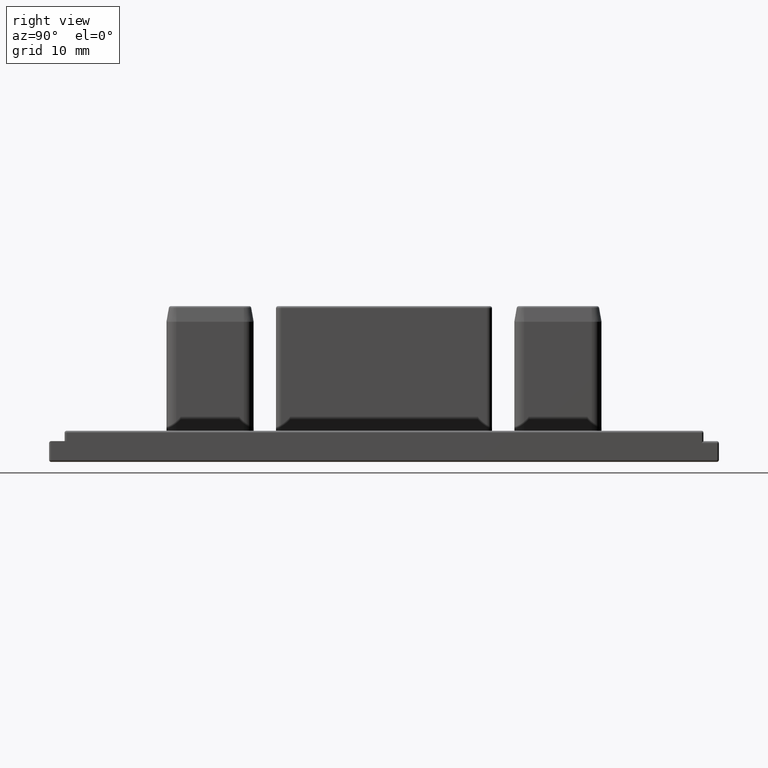
[diagram: clean part render]
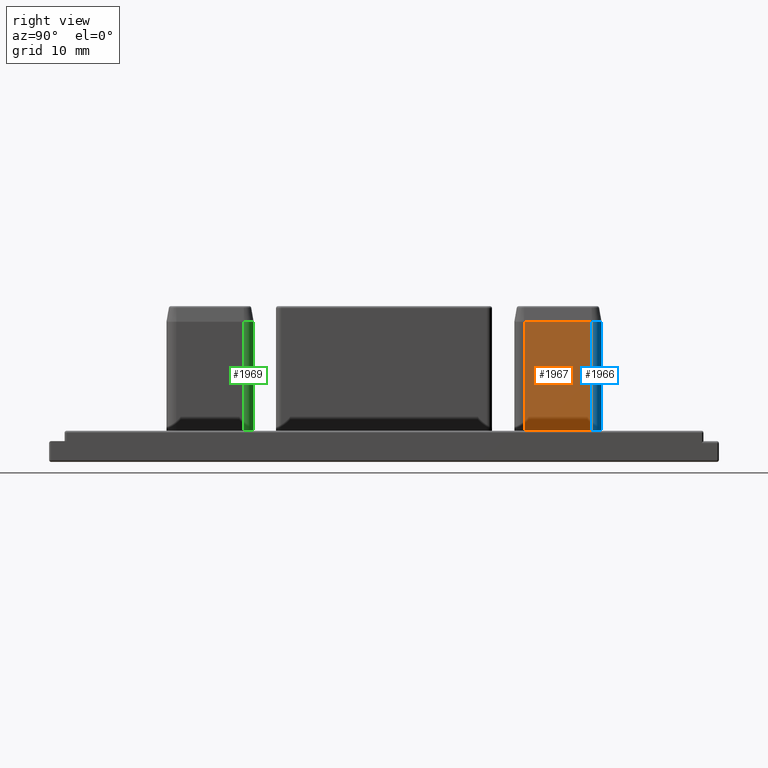
[diagram: same view with three faces highlighted in distinct colors, each labeled with its STEP entity id]
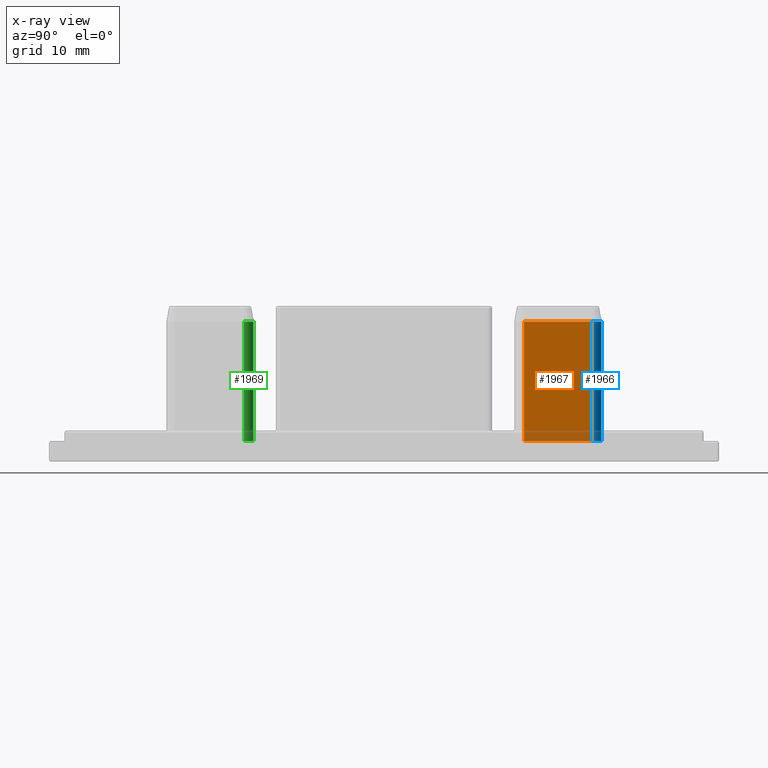
[diagram: x-ray of the same camera — body ghosted, the three highlighted faces saturated]
A machine part, right view with three faces highlighted in distinct colors.
The next image is the same camera in x-ray (body ghosted, the three faces saturated) — at least one of them is partly hidden behind the body in this view.
Their STEP definitions:

[orange] entity #1967 — the highlighted planar face has unit normal (1, 0, 0).
#67=PLANE('',#2251);
#207=FACE_OUTER_BOUND('',#331,.T.);
#331=EDGE_LOOP('',(#1740,#1741,#1742,#1743));
#449=LINE('',#3555,#592);
#463=LINE('',#3596,#606);
#467=LINE('',#3610,#610);
#478=LINE('',#3636,#621);
#592=VECTOR('',#2799,10.);
#606=VECTOR('',#2837,10.);
#610=VECTOR('',#2859,10.);
#621=VECTOR('',#2892,10.);
#911=VERTEX_POINT('',#3552);
#912=VERTEX_POINT('',#3554);
#926=VERTEX_POINT('',#3590);
#927=VERTEX_POINT('',#3594);
#1172=EDGE_CURVE('',#911,#912,#449,.T.);
#1194=EDGE_CURVE('',#927,#926,#463,.T.);
#1199=EDGE_CURVE('',#912,#927,#467,.T.);
#1212=EDGE_CURVE('',#911,#926,#478,.T.);
#1740=ORIENTED_EDGE('',*,*,#1194,.F.);
#1741=ORIENTED_EDGE('',*,*,#1199,.F.);
#1742=ORIENTED_EDGE('',*,*,#1172,.F.);
#1743=ORIENTED_EDGE('',*,*,#1212,.T.);
#1967=ADVANCED_FACE('',(#207),#67,.T.);
#2251=AXIS2_PLACEMENT_3D('',#3637,#2893,#2894);
#2799=DIRECTION('',(0.,-1.,0.));
#2837=DIRECTION('',(0.,1.,1.82044381611359E-31));
#2859=DIRECTION('',(0.,0.,1.));
#2892=DIRECTION('',(0.,0.,1.));
#2893=DIRECTION('center_axis',(1.,0.,0.));
#2894=DIRECTION('ref_axis',(0.,0.,-1.));
#3552=CARTESIAN_POINT('',(1.95,20.,2.));
#3554=CARTESIAN_POINT('',(1.95,13.5,2.));
#3555=CARTESIAN_POINT('',(1.95,10.,2.));
#3590=CARTESIAN_POINT('',(1.95,20.,13.5));
#3594=CARTESIAN_POINT('',(1.95,13.5,13.5));
#3596=CARTESIAN_POINT('',(1.95,18.3728798923377,13.5));
#3610=CARTESIAN_POINT('',(1.95,13.5,2.));
#3636=CARTESIAN_POINT('',(1.95,20.,2.));
#3637=CARTESIAN_POINT('Origin',(1.95,20.,2.));

[blue] entity #1966 — the highlighted cylindrical surface (edge-blend (fillet) strip) has radius 0.95 mm, axis along (0, 0, 1).
#206=FACE_OUTER_BOUND('',#330,.T.);
#330=EDGE_LOOP('',(#1736,#1737,#1738,#1739));
#459=LINE('',#3586,#602);
#478=LINE('',#3636,#621);
#602=VECTOR('',#2825,10.);
#621=VECTOR('',#2892,10.);
#753=CIRCLE('',#2218,0.95);
#761=CIRCLE('',#2229,0.95);
#910=VERTEX_POINT('',#3550);
#911=VERTEX_POINT('',#3552);
#925=VERTEX_POINT('',#3584);
#926=VERTEX_POINT('',#3590);
#1171=EDGE_CURVE('',#910,#911,#753,.T.);
#1189=EDGE_CURVE('',#910,#925,#459,.T.);
#1192=EDGE_CURVE('',#926,#925,#761,.T.);
#1212=EDGE_CURVE('',#911,#926,#478,.T.);
#1736=ORIENTED_EDGE('',*,*,#1192,.F.);
#1737=ORIENTED_EDGE('',*,*,#1212,.F.);
#1738=ORIENTED_EDGE('',*,*,#1171,.F.);
#1739=ORIENTED_EDGE('',*,*,#1189,.T.);
#1851=CYLINDRICAL_SURFACE('',#2250,0.95);
#1966=ADVANCED_FACE('',(#206),#1851,.T.);
#2218=AXIS2_PLACEMENT_3D('',#3553,#2797,#2798);
#2229=AXIS2_PLACEMENT_3D('',#3592,#2832,#2833);
#2250=AXIS2_PLACEMENT_3D('',#3635,#2890,#2891);
#2797=DIRECTION('center_axis',(0.,0.,-1.));
#2798=DIRECTION('ref_axis',(1.,0.,0.));
#2825=DIRECTION('',(0.,0.,1.));
#2832=DIRECTION('center_axis',(1.53123800134082E-30,-1.82044381611359E-31,
1.));
#2833=DIRECTION('ref_axis',(1.,0.,0.));
#2890=DIRECTION('center_axis',(0.,0.,1.));
#2891=DIRECTION('ref_axis',(1.,0.,0.));
#2892=DIRECTION('',(0.,0.,1.));
#3550=CARTESIAN_POINT('',(1.,20.95,2.));
#3552=CARTESIAN_POINT('',(1.95,20.,2.));
#3553=CARTESIAN_POINT('Origin',(1.,20.,2.));
#3584=CARTESIAN_POINT('',(1.,20.95,13.5));
#3586=CARTESIAN_POINT('',(1.,20.95,2.));
#3590=CARTESIAN_POINT('',(1.95,20.,13.5));
#3592=CARTESIAN_POINT('Origin',(1.,20.,13.5));
#3635=CARTESIAN_POINT('Origin',(1.,20.,2.));
#3636=CARTESIAN_POINT('',(1.95,20.,2.));

[green] entity #1969 — the highlighted cylindrical surface (edge-blend (fillet) strip) has radius 0.95 mm, axis along (0, 0, 1).
#209=FACE_OUTER_BOUND('',#333,.T.);
#333=EDGE_LOOP('',(#1748,#1749,#1750,#1751));
#479=LINE('',#3639,#622);
#480=LINE('',#3641,#623);
#622=VECTOR('',#2897,10.);
#623=VECTOR('',#2900,10.);
#759=CIRCLE('',#2224,0.95);
#763=CIRCLE('',#2242,0.95);
#921=VERTEX_POINT('',#3574);
#922=VERTEX_POINT('',#3576);
#930=VERTEX_POINT('',#3614);
#931=VERTEX_POINT('',#3618);
#1184=EDGE_CURVE('',#921,#922,#759,.T.);
#1203=EDGE_CURVE('',#930,#931,#763,.T.);
#1213=EDGE_CURVE('',#921,#931,#479,.T.);
#1214=EDGE_CURVE('',#922,#930,#480,.T.);
#1748=ORIENTED_EDGE('',*,*,#1203,.F.);
#1749=ORIENTED_EDGE('',*,*,#1214,.F.);
#1750=ORIENTED_EDGE('',*,*,#1184,.F.);
#1751=ORIENTED_EDGE('',*,*,#1213,.T.);
#1852=CYLINDRICAL_SURFACE('',#2253,0.95);
#1969=ADVANCED_FACE('',(#209),#1852,.T.);
#2224=AXIS2_PLACEMENT_3D('',#3577,#2816,#2817);
#2242=AXIS2_PLACEMENT_3D('',#3619,#2867,#2868);
#2253=AXIS2_PLACEMENT_3D('',#3640,#2898,#2899);
#2816=DIRECTION('center_axis',(0.,0.,-1.));
#2817=DIRECTION('ref_axis',(1.,0.,0.));
#2867=DIRECTION('center_axis',(6.5824207884635E-31,1.03241533586133E-30,
1.));
#2868=DIRECTION('ref_axis',(1.,0.,0.));
#2897=DIRECTION('',(0.,0.,1.));
#2898=DIRECTION('center_axis',(0.,0.,1.));
#2899=DIRECTION('ref_axis',(1.,0.,0.));
#2900=DIRECTION('',(0.,0.,1.));
#3574=CARTESIAN_POINT('',(1.,-12.55,2.));
#3576=CARTESIAN_POINT('',(1.95,-13.5,2.));
#3577=CARTESIAN_POINT('Origin',(1.,-13.5,2.));
#3614=CARTESIAN_POINT('',(1.95,-13.5,13.5));
#3618=CARTESIAN_POINT('',(1.,-12.55,13.5));
#3619=CARTESIAN_POINT('Origin',(1.,-13.5,13.5));
#3639=CARTESIAN_POINT('',(1.,-12.55,2.));
#3640=CARTESIAN_POINT('Origin',(1.,-13.5,2.));
#3641=CARTESIAN_POINT('',(1.95,-13.5,2.));